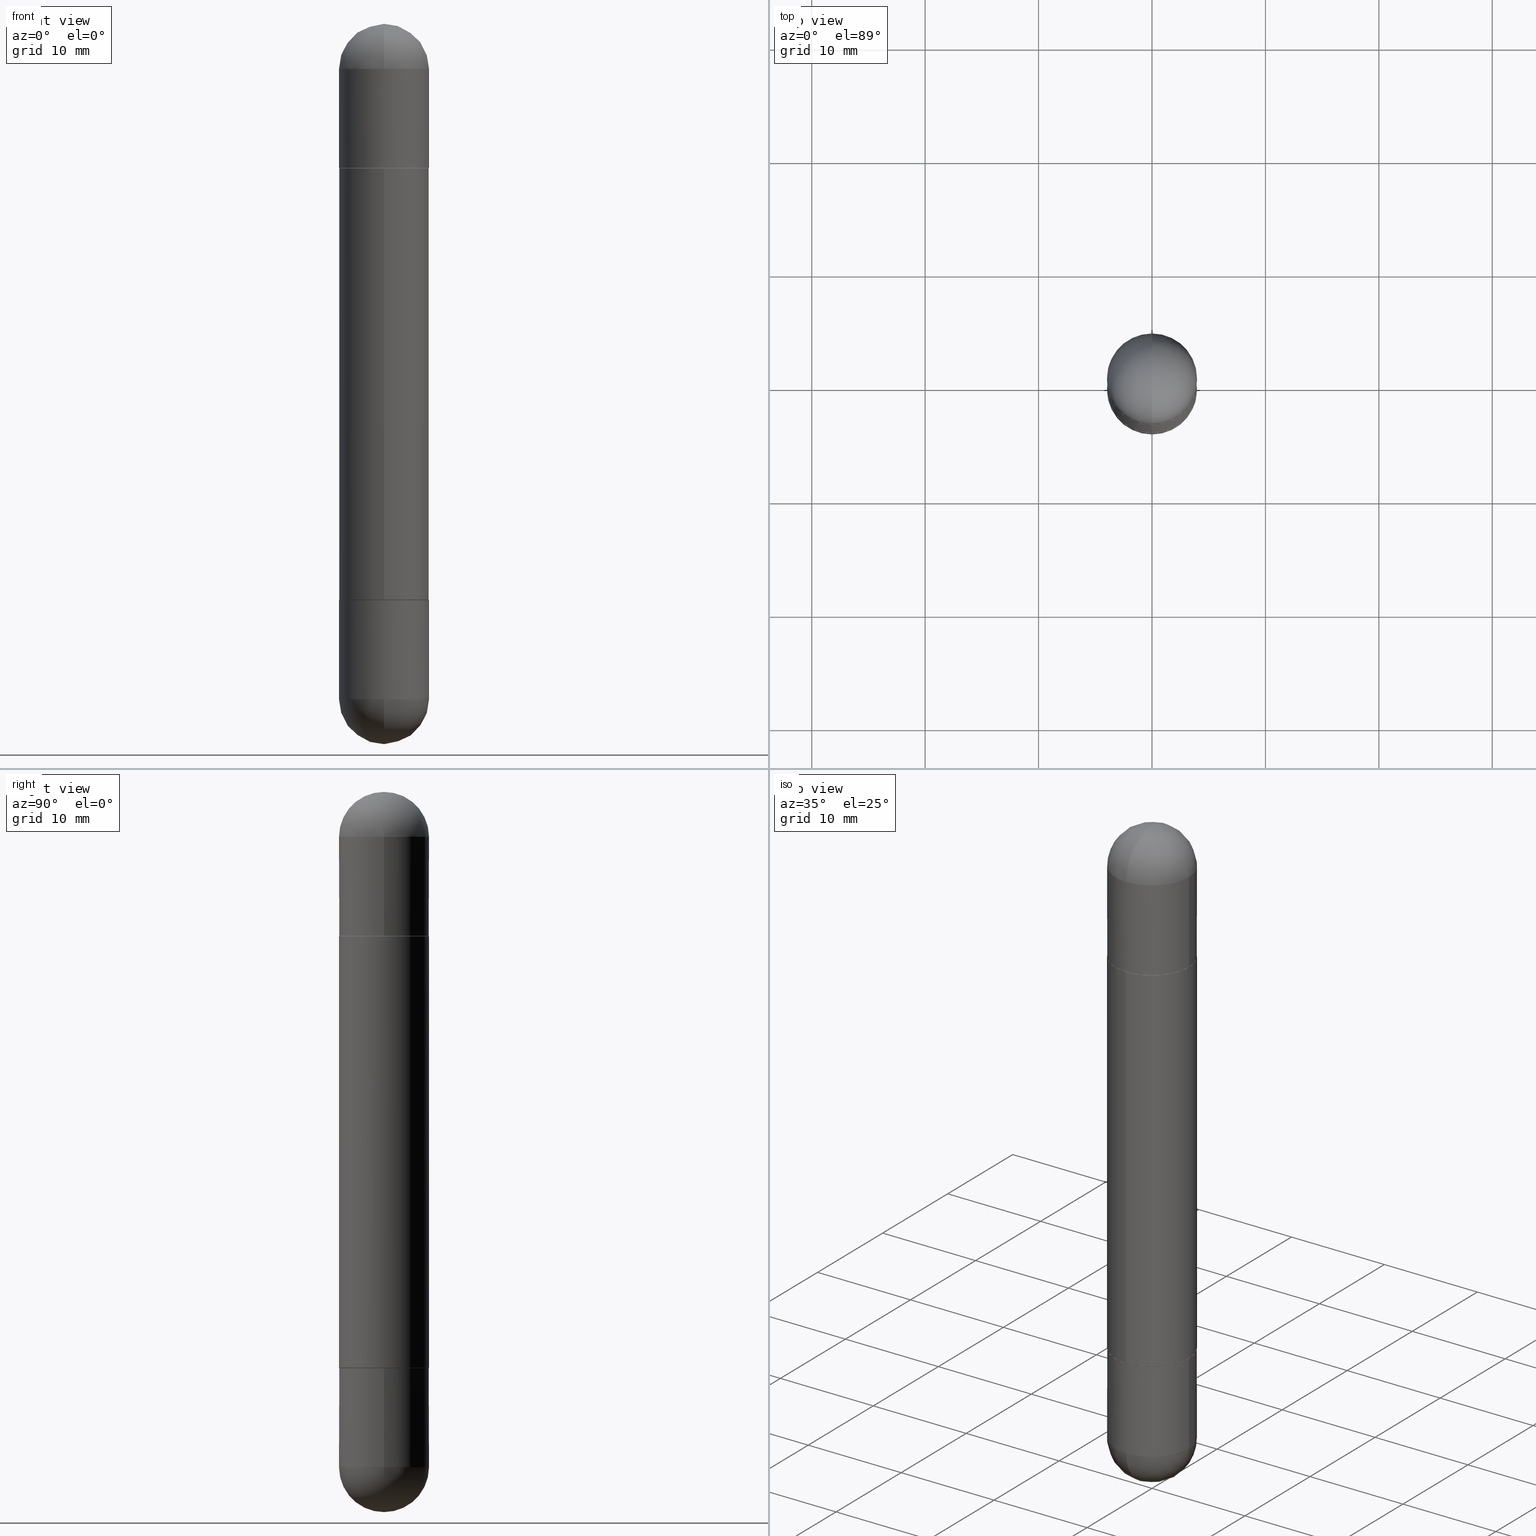
[diagram: canonical four-view strip — front | top / right | iso, engineering-drawing reading convention]
A machine part, canonical four-view strip (front | top / right | iso — engineering-drawing reading convention). The complete STEP part file that produces these views, byte-faithful:
ISO-10303-21;
HEADER;
FILE_DESCRIPTION (( 'STEP AP203' ),
    '1' );
FILE_NAME ('31353.STEP',
    '2024-03-01T12:41:30',
    ( '' ),
    ( '' ),
    'SwSTEP 2.0',
    'SolidWorks 2023',
    '' );
FILE_SCHEMA (( 'CONFIG_CONTROL_DESIGN' ));
ENDSEC;

DATA;
#1 =( NAMED_UNIT ( * ) PLANE_ANGLE_UNIT ( ) SI_UNIT ( $, .RADIAN. ) );
#2 = LINE ( 'NONE', #768, #722 ) ;
#3 = VERTEX_POINT ( 'NONE', #161 ) ;
#4 =( CONVERSION_BASED_UNIT ( 'INCH', #436 ) LENGTH_UNIT ( ) NAMED_UNIT ( #564 ) );
#5 = DIRECTION ( 'NONE',  ( 1.000000000000000000, -6.982962677686262766E-15, 0.000000000000000000 ) ) ;
#6 = ORIENTED_EDGE ( 'NONE', *, *, #600, .T. ) ;
#7 = CIRCLE ( 'NONE', #799, 0.1562500000000002498 ) ;
#8 = APPLICATION_PROTOCOL_DEFINITION ( 'international standard', 'config_control_design', 1994, #443 ) ;
#9 = APPROVAL_PERSON_ORGANIZATION ( #157, #444, #770 ) ;
#10 = CARTESIAN_POINT ( 'NONE',  ( 4.890675962207928082E-29, -6.983337375610971265E-15, -0.5000000000000006661 ) ) ;
#11 = ORIENTED_EDGE ( 'NONE', *, *, #57, .T. ) ;
#12 = AXIS2_PLACEMENT_3D ( 'NONE', #119, #549, #685 ) ;
#13 = ADVANCED_FACE ( 'NONE', ( #732 ), #115, .T. ) ;
#14 = AXIS2_PLACEMENT_3D ( 'NONE', #19, #518, #772 ) ;
#15 = CARTESIAN_POINT ( 'NONE',  ( 1.071952812151851110E-15, 0.1562499999999957812, -1.250000000000000222 ) ) ;
#16 = ORIENTED_EDGE ( 'NONE', *, *, #80, .F. ) ;
#17 = ADVANCED_FACE ( 'NONE', ( #674 ), #173, .F. ) ;
#18 = APPROVAL_ROLE ( '' ) ;
#19 = CARTESIAN_POINT ( 'NONE',  ( 4.890937612370273194E-29, -6.982962677686291165E-15, -0.5000000000000006661 ) ) ;
#20 = ORIENTED_EDGE ( 'NONE', *, *, #715, .F. ) ;
#21 = DIRECTION ( 'NONE',  ( 2.445468806185136597E-29, -3.491481338843145583E-15, 1.000000000000000000 ) ) ;
#22 = CIRCLE ( 'NONE', #479, 0.1562500000000002776 ) ;
#23 = EDGE_LOOP ( 'NONE', ( #342, #467, #401, #350 ) ) ;
#24 = EDGE_CURVE ( 'NONE', #630, #587, #306, .T. ) ;
#25 = VERTEX_POINT ( 'NONE', #294 ) ;
#26 = EDGE_CURVE ( 'NONE', #406, #280, #112, .T. ) ;
#27 = AXIS2_PLACEMENT_3D ( 'NONE', #702, #501, #573 ) ;
#28 = AXIS2_PLACEMENT_3D ( 'NONE', #632, #765, #210 ) ;
#29 = COORDINATED_UNIVERSAL_TIME_OFFSET ( 5, 0, .BEHIND. ) ;
#30 = DIRECTION ( 'NONE',  ( -2.445337981103964041E-29, 3.491668687805485632E-15, -1.000000000000000000 ) ) ;
#31 = EDGE_LOOP ( 'NONE', ( #718, #774 ) ) ;
#32 = VERTEX_POINT ( 'NONE', #668 ) ;
#33 = PERSON_AND_ORGANIZATION ( #817, #546 ) ;
#34 = CARTESIAN_POINT ( 'NONE',  ( -0.1562500000000000000, 1.110223024625156540E-15, -7.685836078523291160E-30 ) ) ;
#35 = ORIENTED_EDGE ( 'NONE', *, *, #287, .F. ) ;
#36 = ORIENTED_EDGE ( 'NONE', *, *, #516, .F. ) ;
#37 = ADVANCED_FACE ( 'NONE', ( #364 ), #671, .T. ) ;
#38 = APPLICATION_PROTOCOL_DEFINITION ( 'international standard', 'config_control_design', 1994, #733 ) ;
#39 = DIRECTION ( 'NONE',  ( 2.445468806185136597E-29, -3.491481338843145583E-15, 1.000000000000000000 ) ) ;
#40 = ORIENTED_EDGE ( 'NONE', *, *, #516, .T. ) ;
#41 = ORIENTED_EDGE ( 'NONE', *, *, #371, .T. ) ;
#42 = APPROVAL_PERSON_ORGANIZATION ( #721, #120, #18 ) ;
#43 = CC_DESIGN_PERSON_AND_ORGANIZATION_ASSIGNMENT ( #526, #530, ( #520 ) ) ;
#44 = CIRCLE ( 'NONE', #682, 0.1562500000000000000 ) ;
#45 = CARTESIAN_POINT ( 'NONE',  ( 4.890937612370273194E-29, -6.982962677686291165E-15, -2.000000000000000000 ) ) ;
#46 = ORIENTED_EDGE ( 'NONE', *, *, #453, .F. ) ;
#47 = EDGE_CURVE ( 'NONE', #141, #658, #134, .T. ) ;
#48 = CARTESIAN_POINT ( 'NONE',  ( 4.888230624226824176E-29, -6.979845706923165572E-15, -0.5010000000000007780 ) ) ;
#49 = CARTESIAN_POINT ( 'NONE',  ( -1.084104955710744053E-15, -0.1552500000000069935, -0.5000000000000009992 ) ) ;
#50 = CARTESIAN_POINT ( 'NONE',  ( 4.890675962207929203E-29, -6.983337375610972054E-15, -2.000000000000000444 ) ) ;
#51 = DIRECTION ( 'NONE',  ( -2.445337981103964041E-29, 3.491668687805485632E-15, 1.000000000000000000 ) ) ;
#52 = APPROVAL ( #711, 'UNSPECIFIED' ) ;
#53 = CARTESIAN_POINT ( 'NONE',  ( 5.400447736582527652E-29, -8.657341756053672891E-15, -2.343750000000000000 ) ) ;
#54 = CARTESIAN_POINT ( 'NONE',  ( 5.789233224183170584E-29, -9.193318162129576161E-15, -2.500000000000000000 ) ) ;
#55 = EDGE_CURVE ( 'NONE', #464, #658, #422, .T. ) ;
#56 = CIRCLE ( 'NONE', #377, 0.1552499999999999991 ) ;
#57 = EDGE_CURVE ( 'NONE', #580, #25, #273, .T. ) ;
#58 = CARTESIAN_POINT ( 'NONE',  ( -0.1562500000000000000, -6.472838008174799945E-15, -2.000000000000000000 ) ) ;
#59 = CONICAL_SURFACE ( 'NONE', #367, 0.1552499999999999991, 0.7853981633974141952 ) ;
#60 = DIRECTION ( 'NONE',  ( -6.982962677686265922E-15, -1.000000000000000000, -3.496765431890250609E-15 ) ) ;
#61 = SPHERICAL_SURFACE ( 'NONE', #454, 0.1562500000000002498 ) ;
#62 = DIRECTION ( 'NONE',  ( -6.982962677686265922E-15, -1.000000000000000000, -3.496765431890250609E-15 ) ) ;
#63 = EDGE_CURVE ( 'NONE', #198, #103, #239, .T. ) ;
#64 = DIRECTION ( 'NONE',  ( -6.982962677686265922E-15, -1.000000000000000000, 3.519288880726909138E-15 ) ) ;
#65 = DIRECTION ( 'NONE',  ( 2.445468806185136597E-29, -3.491481338843145583E-15, 1.000000000000000000 ) ) ;
#66 = FACE_OUTER_BOUND ( 'NONE', #214, .T. ) ;
#67 = CARTESIAN_POINT ( 'NONE',  ( 4.890937612370273194E-29, -6.982962677686291165E-15, -0.5000000000000006661 ) ) ;
#68 = ORIENTED_EDGE ( 'NONE', *, *, #199, .F. ) ;
#69 = CIRCLE ( 'NONE', #177, 0.1552499999999999991 ) ;
#70 = DIRECTION ( 'NONE',  ( 2.445337981103964041E-29, -3.491668687805485632E-15, 1.000000000000000000 ) ) ;
#71 = ORIENTED_EDGE ( 'NONE', *, *, #208, .T. ) ;
#72 = EDGE_CURVE ( 'NONE', #103, #412, #190, .T. ) ;
#73 = FACE_OUTER_BOUND ( 'NONE', #782, .T. ) ;
#74 = CARTESIAN_POINT ( 'NONE',  ( 5.400447736582527652E-29, -8.657341756053672891E-15, -0.1562500000000005551 ) ) ;
#75 = EDGE_LOOP ( 'NONE', ( #725, #276, #71, #397 ) ) ;
#76 = AXIS2_PLACEMENT_3D ( 'NONE', #205, #571, #77 ) ;
#77 = DIRECTION ( 'NONE',  ( 1.000000000000000000, 0.000000000000000000, 0.000000000000000000 ) ) ;
#78 = DIRECTION ( 'NONE',  ( 1.000000000000000000, -6.982962677686265922E-15, -4.883557194083112340E-29 ) ) ;
#79 = VERTEX_POINT ( 'NONE', #606 ) ;
#80 = EDGE_CURVE ( 'NONE', #714, #580, #426, .T. ) ;
#81 = AXIS2_PLACEMENT_3D ( 'NONE', #370, #374, #248 ) ;
#82 = AXIS2_PLACEMENT_3D ( 'NONE', #458, #652, #165 ) ;
#83 = CARTESIAN_POINT ( 'NONE',  ( 0.000000000000000000, 0.000000000000000000, -2.500000000000000444 ) ) ;
#84 = DIRECTION ( 'NONE',  ( -6.982962677686265922E-15, -1.000000000000000000, 0.000000000000000000 ) ) ;
#85 = VERTEX_POINT ( 'NONE', #803 ) ;
#86 = ADVANCED_FACE ( 'NONE', ( #481 ), #603, .T. ) ;
#87 = EDGE_CURVE ( 'NONE', #563, #630, #215, .T. ) ;
#88 = DIRECTION ( 'NONE',  ( 1.000000000000000000, -6.982962677686262766E-15, 0.000000000000000000 ) ) ;
#89 = ORIENTED_EDGE ( 'NONE', *, *, #80, .T. ) ;
#90 = ORIENTED_EDGE ( 'NONE', *, *, #539, .F. ) ;
#91 = CARTESIAN_POINT ( 'NONE',  ( 5.400447736582527652E-29, -8.657341756053672891E-15, -2.343750000000000000 ) ) ;
#92 = AXIS2_PLACEMENT_3D ( 'NONE', #128, #328, #249 ) ;
#93 = ORIENTED_EDGE ( 'NONE', *, *, #63, .T. ) ;
#94 = VERTEX_POINT ( 'NONE', #482 ) ;
#95 = AXIS2_PLACEMENT_3D ( 'NONE', #562, #717, #88 ) ;
#96 = PERSON_AND_ORGANIZATION ( #817, #546 ) ;
#97 = DIRECTION ( 'NONE',  ( -7.105427357601000281E-15, -1.000000000000000000, 0.000000000000000000 ) ) ;
#98 = ORIENTED_EDGE ( 'NONE', *, *, #619, .F. ) ;
#99 = EDGE_CURVE ( 'NONE', #574, #381, #743, .T. ) ;
#100 = ORIENTED_EDGE ( 'NONE', *, *, #449, .F. ) ;
#101 = PERSON_AND_ORGANIZATION_ROLE ( 'creator' ) ;
#102 = CARTESIAN_POINT ( 'NONE',  ( 5.789233224183170584E-29, -9.193318162129576161E-15, -3.073328992872296367E-16 ) ) ;
#103 = VERTEX_POINT ( 'NONE', #435 ) ;
#104 = EDGE_LOOP ( 'NONE', ( #647, #648, #315, #391 ) ) ;
#105 = CALENDAR_DATE ( 2024, 1, 3 ) ;
#106 = CARTESIAN_POINT ( 'NONE',  ( -1.091087918388432039E-15, -0.1562500000000072720, -0.5010000000000013332 ) ) ;
#107 = ORIENTED_EDGE ( 'NONE', *, *, #287, .T. ) ;
#108 = AXIS2_PLACEMENT_3D ( 'NONE', #637, #256, #378 ) ;
#109 = EDGE_CURVE ( 'NONE', #3, #627, #183, .T. ) ;
#110 = CIRCLE ( 'NONE', #561, 0.1562500000000002776 ) ;
#111 = CARTESIAN_POINT ( 'NONE',  ( -1.091087918388479962E-15, -0.1562500000000001388, -2.500000000000001332 ) ) ;
#112 = LINE ( 'NONE', #477, #355 ) ;
#113 = ADVANCED_FACE ( 'NONE', ( #804 ), #149, .T. ) ;
#114 = CARTESIAN_POINT ( 'NONE',  ( 1.071952812151802595E-15, 0.1562500000000001388, -2.500000000000000000 ) ) ;
#115 = SPHERICAL_SURFACE ( 'NONE', #636, 0.1562500000000002498 ) ;
#116 = DIRECTION ( 'NONE',  ( -6.982962677686265922E-15, -1.000000000000000000, 3.491668687805485632E-15 ) ) ;
#117 = DIRECTION ( 'NONE',  ( 2.445468806185136597E-29, -3.491481338843145583E-15, 1.000000000000000000 ) ) ;
#118 = DIRECTION ( 'NONE',  ( -4.937700262164378437E-15, -0.7071067811865208164, -0.7071067811865739960 ) ) ;
#119 = CARTESIAN_POINT ( 'NONE',  ( 5.731567514496413899E-29, -8.183159387913622595E-15, -0.1562500000000005551 ) ) ;
#120 = APPROVAL ( #583, 'UNSPECIFIED' ) ;
#121 = FACE_OUTER_BOUND ( 'NONE', #533, .T. ) ;
#122 = AXIS2_PLACEMENT_3D ( 'NONE', #10, #267, #140 ) ;
#123 = CIRCLE ( 'NONE', #228, 0.1562500000000000000 ) ;
#124 = DIRECTION ( 'NONE',  ( -4.937700262164378437E-15, -0.7071067811865208164, -0.7071067811865739960 ) ) ;
#125 = DIRECTION ( 'NONE',  ( -6.982962677686265922E-15, -1.000000000000000000, -3.519288880726909138E-15 ) ) ;
#126 = DIRECTION ( 'NONE',  ( -6.982962677686265922E-15, -1.000000000000000000, -3.519288880726909138E-15 ) ) ;
#127 = DIRECTION ( 'NONE',  ( 1.000000000000000000, -6.860497997771530774E-15, -4.840798879624142912E-29 ) ) ;
#128 = CARTESIAN_POINT ( 'NONE',  ( 1.091087918388527886E-15, 0.1562499999999930334, -0.5000000000000001110 ) ) ;
#129 = CARTESIAN_POINT ( 'NONE',  ( -0.1562500000000000000, -6.511108220648155468E-15, -0.5000000000000006661 ) ) ;
#130 = ORIENTED_EDGE ( 'NONE', *, *, #55, .T. ) ;
#131 = CIRCLE ( 'NONE', #297, 0.1562500000000002776 ) ;
#132 = CARTESIAN_POINT ( 'NONE',  ( 0.000000000000000000, 0.000000000000000000, -2.500000000000000444 ) ) ;
#133 = MANIFOLD_SOLID_BREP ( 'Body-Move/Copy2[1]', #323 ) ;
#134 = CIRCLE ( 'NONE', #695, 0.1562500000000002776 ) ;
#135 = DIRECTION ( 'NONE',  ( -6.982962677686265922E-15, -1.000000000000000000, -3.496765431890250609E-15 ) ) ;
#136 = EDGE_LOOP ( 'NONE', ( #463, #567, #321, #704 ) ) ;
#137 = AXIS2_PLACEMENT_3D ( 'NONE', #352, #408, #535 ) ;
#138 = CYLINDRICAL_SURFACE ( 'NONE', #773, 0.1562500000000001388 ) ;
#139 = ADVANCED_FACE ( 'NONE', ( #194 ), #749, .F. ) ;
#140 = DIRECTION ( 'NONE',  ( -6.982962677686265922E-15, -1.000000000000000000, -3.491668687805485632E-15 ) ) ;
#141 = VERTEX_POINT ( 'NONE', #180 ) ;
#142 = FACE_OUTER_BOUND ( 'NONE', #292, .T. ) ;
#143 = DIRECTION ( 'NONE',  ( -2.445337981103964041E-29, 3.491668687805485632E-15, -1.000000000000000000 ) ) ;
#144 = ORIENTED_EDGE ( 'NONE', *, *, #686, .F. ) ;
#145 = VECTOR ( 'NONE', #485, 39.37007874015748143 ) ;
#146 = EDGE_CURVE ( 'NONE', #726, #262, #522, .T. ) ;
#147 = LINE ( 'NONE', #390, #614 ) ;
#148 = EDGE_LOOP ( 'NONE', ( #474, #166, #588, #570, #713 ) ) ;
#149 = CONICAL_SURFACE ( 'NONE', #251, 0.1552499999999999991, 0.7853981633974141952 ) ;
#150 = EDGE_CURVE ( 'NONE', #406, #590, #227, .T. ) ;
#151 = DIRECTION ( 'NONE',  ( 1.000000000000000000, -6.982962677686262766E-15, 0.000000000000000000 ) ) ;
#152 = ORIENTED_EDGE ( 'NONE', *, *, #398, .F. ) ;
#153 = ORIENTED_EDGE ( 'NONE', *, *, #146, .T. ) ;
#154 = DIRECTION ( 'NONE',  ( -1.000000000000000000, 0.000000000000000000, 0.000000000000000000 ) ) ;
#155 = ORIENTED_EDGE ( 'NONE', *, *, #26, .F. ) ;
#156 = ORIENTED_EDGE ( 'NONE', *, *, #373, .T. ) ;
#157 = PERSON_AND_ORGANIZATION ( #817, #546 ) ;
#158 = AXIS2_PLACEMENT_3D ( 'NONE', #83, #576, #503 ) ;
#159 = CARTESIAN_POINT ( 'NONE',  ( 5.731567514496413899E-29, -8.183159387913622595E-15, -0.1562500000000005551 ) ) ;
#160 = CIRCLE ( 'NONE', #506, 0.1562500000000000000 ) ;
#161 = CARTESIAN_POINT ( 'NONE',  ( 0.1562500000000000000, -8.674148951188436448E-15, -0.1562500000000005551 ) ) ;
#162 = AXIS2_PLACEMENT_3D ( 'NONE', #514, #317, #84 ) ;
#163 = CIRCLE ( 'NONE', #343, 0.1552499999999999991 ) ;
#164 = CC_DESIGN_PERSON_AND_ORGANIZATION_ASSIGNMENT ( #33, #645, ( #734 ) ) ;
#165 = DIRECTION ( 'NONE',  ( -6.982962677686265922E-15, -1.000000000000000000, 3.519288880726909138E-15 ) ) ;
#166 = ORIENTED_EDGE ( 'NONE', *, *, #747, .T. ) ;
#167 = ORIENTED_EDGE ( 'NONE', *, *, #676, .F. ) ;
#168 = PERSON_AND_ORGANIZATION_ROLE ( 'design_owner' ) ;
#169 = DIRECTION ( 'NONE',  ( -2.445468806185136597E-29, 3.491481338843145583E-15, -1.000000000000000000 ) ) ;
#170 = EDGE_CURVE ( 'NONE', #630, #563, #818, .T. ) ;
#171 = EDGE_LOOP ( 'NONE', ( #532, #386, #528, #16 ) ) ;
#172 = FACE_OUTER_BOUND ( 'NONE', #643, .T. ) ;
#173 = PLANE ( 'NONE',  #801 ) ;
#174 = APPROVAL_PERSON_ORGANIZATION ( #96, #52, #216 ) ;
#175 = ADVANCED_FACE ( 'NONE', ( #66 ), #557, .T. ) ;
#176 = ADVANCED_FACE ( 'NONE', ( #432 ), #544, .T. ) ;
#177 = AXIS2_PLACEMENT_3D ( 'NONE', #626, #261, #324 ) ;
#178 = CARTESIAN_POINT ( 'NONE',  ( 4.890937612370273194E-29, -6.982962677686291165E-15, -0.5000000000000006661 ) ) ;
#179 = DIRECTION ( 'NONE',  ( 6.982962677686265922E-15, 1.000000000000000000, 3.496765431890251398E-15 ) ) ;
#180 = CARTESIAN_POINT ( 'NONE',  ( 1.071952812151833755E-15, 0.1562499999999933109, -1.999000000000000554 ) ) ;
#181 = CARTESIAN_POINT ( 'NONE',  ( 5.731567514496413899E-29, -8.183159387913622595E-15, -0.1562500000000005551 ) ) ;
#182 = DIRECTION ( 'NONE',  ( -4.937700262164378437E-15, -0.7071067811865208164, 0.7071067811865739960 ) ) ;
#183 = LINE ( 'NONE', #423, #428 ) ;
#184 = DESIGN_CONTEXT ( 'detailed design', #733, 'design' ) ;
#185 = CARTESIAN_POINT ( 'NONE',  ( -1.071952812151746981E-15, -0.1562500000000085487, -0.1562500000000011102 ) ) ;
#186 = DIRECTION ( 'NONE',  ( 1.000000000000000000, -6.982962677686262766E-15, 0.000000000000000000 ) ) ;
#187 = DIRECTION ( 'NONE',  ( -2.445468806185136597E-29, 3.491481338843145583E-15, 1.000000000000000000 ) ) ;
#188 = LOCAL_TIME ( 7, 41, 30.00000000000000000, #282 ) ;
#189 = DIRECTION ( 'NONE',  ( 1.000000000000000000, -6.860497997771530774E-15, -4.840798879624142912E-29 ) ) ;
#190 = CIRCLE ( 'NONE', #598, 0.1562500000000000000 ) ;
#191 = CC_DESIGN_PERSON_AND_ORGANIZATION_ASSIGNMENT ( #346, #517, ( #520 ) ) ;
#192 = DIRECTION ( 'NONE',  ( 1.000000000000000000, -6.982962677686269077E-15, 0.000000000000000000 ) ) ;
#193 = PLANE ( 'NONE',  #363 ) ;
#194 = FACE_OUTER_BOUND ( 'NONE', #202, .T. ) ;
#195 = ADVANCED_FACE ( 'NONE', ( #494 ), #740, .F. ) ;
#196 = DIRECTION ( 'NONE',  ( -2.445337981103964041E-29, 3.491668687805485632E-15, -1.000000000000000000 ) ) ;
#197 = FACE_OUTER_BOUND ( 'NONE', #786, .T. ) ;
#198 = VERTEX_POINT ( 'NONE', #54 ) ;
#199 = EDGE_CURVE ( 'NONE', #529, #32, #379, .T. ) ;
#200 = AXIS2_PLACEMENT_3D ( 'NONE', #798, #127, #604 ) ;
#201 = CYLINDRICAL_SURFACE ( 'NONE', #638, 0.1562500000000001388 ) ;
#202 = EDGE_LOOP ( 'NONE', ( #778, #35 ) ) ;
#203 = AXIS2_PLACEMENT_3D ( 'NONE', #91, #338, #403 ) ;
#204 = MANIFOLD_SOLID_BREP ( 'Mirror4[3]', #812 ) ;
#205 = CARTESIAN_POINT ( 'NONE',  ( 0.000000000000000000, 0.000000000000000000, 0.000000000000000000 ) ) ;
#206 = FACE_OUTER_BOUND ( 'NONE', #634, .T. ) ;
#207 = ORIENTED_EDGE ( 'NONE', *, *, #99, .F. ) ;
#208 = EDGE_CURVE ( 'NONE', #32, #406, #405, .T. ) ;
#209 = DIRECTION ( 'NONE',  ( -6.982962677686265922E-15, -1.000000000000000000, -3.519288880726909138E-15 ) ) ;
#210 = DIRECTION ( 'NONE',  ( 1.000000000000000000, -6.982962677686269077E-15, 0.000000000000000000 ) ) ;
#211 = ORIENTED_EDGE ( 'NONE', *, *, #47, .T. ) ;
#212 = CALENDAR_DATE ( 2024, 1, 3 ) ;
#213 = CARTESIAN_POINT ( 'NONE',  ( 1.106670310946405735E-15, 0.1552499999999930047, -2.000000000000000888 ) ) ;
#214 = EDGE_LOOP ( 'NONE', ( #333, #404, #219, #20, #525 ) ) ;
#215 = CIRCLE ( 'NONE', #341, 0.1552499999999999991 ) ;
#216 = APPROVAL_ROLE ( '' ) ;
#217 = CARTESIAN_POINT ( 'NONE',  ( 1.065092314154079104E-15, 0.1552499999999930047, -0.4999999999999998335 ) ) ;
#218 = ORIENTED_EDGE ( 'NONE', *, *, #26, .T. ) ;
#219 = ORIENTED_EDGE ( 'NONE', *, *, #491, .F. ) ;
#220 = DATE_AND_TIME ( #790, #621 ) ;
#221 = CARTESIAN_POINT ( 'NONE',  ( 4.890675962207929203E-29, -6.983337375610972054E-15, -2.000000000000000444 ) ) ;
#222 = EDGE_LOOP ( 'NONE', ( #354, #100 ) ) ;
#223 = EDGE_LOOP ( 'NONE', ( #698, #40, #694, #795 ) ) ;
#224 = CARTESIAN_POINT ( 'NONE',  ( 5.731567514496413899E-29, -8.183159387913622595E-15, -0.1562500000000005551 ) ) ;
#225 = ORIENTED_EDGE ( 'NONE', *, *, #87, .F. ) ;
#226 = ORIENTED_EDGE ( 'NONE', *, *, #99, .T. ) ;
#227 = CIRCLE ( 'NONE', #389, 0.1562500000000000000 ) ;
#228 = AXIS2_PLACEMENT_3D ( 'NONE', #67, #455, #314 ) ;
#229 = ADVANCED_FACE ( 'NONE', ( #618 ), #61, .T. ) ;
#230 = FACE_OUTER_BOUND ( 'NONE', #258, .T. ) ;
#231 = ORIENTED_EDGE ( 'NONE', *, *, #625, .F. ) ;
#232 = ADVANCED_FACE ( 'NONE', ( #754 ), #688, .T. ) ;
#233 = DIRECTION ( 'NONE',  ( -1.000000000000000000, 7.105427357601001070E-15, -4.926315508542082329E-29 ) ) ;
#234 = ORIENTED_EDGE ( 'NONE', *, *, #612, .T. ) ;
#235 = DIRECTION ( 'NONE',  ( -1.000000000000000000, 6.982962677686265922E-15, -4.876176775795935793E-29 ) ) ;
#236 = DIRECTION ( 'NONE',  ( -2.445468806185136597E-29, 3.491481338843145583E-15, 1.000000000000000000 ) ) ;
#237 = CIRCLE ( 'NONE', #596, 0.1562500000000002498 ) ;
#238 = CARTESIAN_POINT ( 'NONE',  ( 0.000000000000000000, 0.000000000000000000, -2.500000000000000444 ) ) ;
#239 = CIRCLE ( 'NONE', #439, 0.1562500000000002498 ) ;
#240 = VECTOR ( 'NONE', #724, 39.37007874015748854 ) ;
#241 = LINE ( 'NONE', #114, #145 ) ;
#242 = DIRECTION ( 'NONE',  ( -2.445337981103963761E-29, 3.491668687805485632E-15, -1.000000000000000000 ) ) ;
#243 = CARTESIAN_POINT ( 'NONE',  ( 5.731567514496413899E-29, -8.183159387913622595E-15, -0.1562500000000005551 ) ) ;
#244 = DIRECTION ( 'NONE',  ( -6.982962677686265922E-15, -1.000000000000000000, 3.496765431890250609E-15 ) ) ;
#245 = CARTESIAN_POINT ( 'NONE',  ( 0.000000000000000000, 0.000000000000000000, -2.500000000000000444 ) ) ;
#246 = CARTESIAN_POINT ( 'NONE',  ( 1.091087918388527886E-15, 0.1562499999999930334, -0.5000000000000001110 ) ) ;
#247 = CARTESIAN_POINT ( 'NONE',  ( 0.000000000000000000, 0.000000000000000000, 0.000000000000000000 ) ) ;
#248 = DIRECTION ( 'NONE',  ( 1.000000000000000000, -6.982962677686266711E-15, 4.876176775795936353E-29 ) ) ;
#249 = DIRECTION ( 'NONE',  ( -1.000000000000000000, 6.982962677686265922E-15, 4.876176775795935793E-29 ) ) ;
#250 = EDGE_CURVE ( 'NONE', #272, #85, #508, .T. ) ;
#251 = AXIS2_PLACEMENT_3D ( 'NONE', #50, #304, #64 ) ;
#252 = CARTESIAN_POINT ( 'NONE',  ( 4.890937612370273194E-29, -6.982962677686291165E-15, -2.000000000000000000 ) ) ;
#253 = DIRECTION ( 'NONE',  ( 1.000000000000000000, -6.982962677686266711E-15, 0.000000000000000000 ) ) ;
#254 = ORIENTED_EDGE ( 'NONE', *, *, #277, .F. ) ;
#255 = EDGE_CURVE ( 'NONE', #285, #757, #260, .T. ) ;
#256 = DIRECTION ( 'NONE',  ( -2.445468806185136597E-29, 3.491481338843145583E-15, -1.000000000000000000 ) ) ;
#257 = DIRECTION ( 'NONE',  ( -6.982962677686265922E-15, -1.000000000000000000, -3.496765431890253764E-15 ) ) ;
#258 = EDGE_LOOP ( 'NONE', ( #318, #90, #400, #793, #156 ) ) ;
#259 = AXIS2_PLACEMENT_3D ( 'NONE', #666, #51, #480 ) ;
#260 = CIRCLE ( 'NONE', #416, 0.1562500000000001388 ) ;
#261 = DIRECTION ( 'NONE',  ( 2.445337981103964041E-29, -3.491668687805485632E-15, 1.000000000000000000 ) ) ;
#262 = VERTEX_POINT ( 'NONE', #380 ) ;
#263 = CONICAL_SURFACE ( 'NONE', #551, 0.1552499999999999991, 0.7853981633974141952 ) ;
#264 = DIRECTION ( 'NONE',  ( -6.982962677686265922E-15, -1.000000000000000000, -3.519288880726909138E-15 ) ) ;
#265 = ORIENTED_EDGE ( 'NONE', *, *, #555, .F. ) ;
#266 = DATE_TIME_ROLE ( 'creation_date' ) ;
#267 = DIRECTION ( 'NONE',  ( -2.445337981103963761E-29, 3.491668687805485632E-15, -1.000000000000000000 ) ) ;
#268 = EDGE_LOOP ( 'NONE', ( #689, #41, #785, #581, #152 ) ) ;
#269 = CC_DESIGN_APPROVAL ( #52, ( #520 ) ) ;
#270 = DIRECTION ( 'NONE',  ( -6.982962677686265922E-15, -1.000000000000000000, -3.519288880726909138E-15 ) ) ;
#271 = ORIENTED_EDGE ( 'NONE', *, *, #476, .F. ) ;
#272 = VERTEX_POINT ( 'NONE', #566 ) ;
#273 = CIRCLE ( 'NONE', #468, 0.1562500000000002776 ) ;
#274 = APPROVAL_DATE_TIME ( #220, #52 ) ;
#275 = CARTESIAN_POINT ( 'NONE',  ( 5.400447736582527652E-29, -8.657341756053672891E-15, -2.343750000000000000 ) ) ;
#276 = ORIENTED_EDGE ( 'NONE', *, *, #199, .T. ) ;
#277 = EDGE_CURVE ( 'NONE', #384, #141, #2, .T. ) ;
#278 = COORDINATED_UNIVERSAL_TIME_OFFSET ( 5, 0, .BEHIND. ) ;
#279 = DIRECTION ( 'NONE',  ( -2.445468806185136877E-29, 3.491481338843145188E-15, 1.000000000000000000 ) ) ;
#280 = VERTEX_POINT ( 'NONE', #385 ) ;
#281 = ORIENTED_EDGE ( 'NONE', *, *, #255, .T. ) ;
#282 = COORDINATED_UNIVERSAL_TIME_OFFSET ( 5, 0, .BEHIND. ) ;
#283 = LOCAL_TIME ( 7, 41, 30.00000000000000000, #776 ) ;
#284 = CARTESIAN_POINT ( 'NONE',  ( 1.068522563152965797E-15, 0.1552499999999930047, -0.4999999999999998335 ) ) ;
#285 = VERTEX_POINT ( 'NONE', #15 ) ;
#286 = ORIENTED_EDGE ( 'NONE', *, *, #453, .T. ) ;
#287 = EDGE_CURVE ( 'NONE', #381, #280, #366, .T. ) ;
#288 = VECTOR ( 'NONE', #737, 39.37007874015748143 ) ;
#289 = AXIS2_PLACEMENT_3D ( 'NONE', #656, #462, #154 ) ;
#290 = CARTESIAN_POINT ( 'NONE',  ( 0.1562500000000000000, -8.674148951188436448E-15, -0.1562500000000005551 ) ) ;
#291 = EDGE_CURVE ( 'NONE', #3, #85, #44, .T. ) ;
#292 = EDGE_LOOP ( 'NONE', ( #349, #6, #211, #502 ) ) ;
#293 = DIRECTION ( 'NONE',  ( 2.445337981103964041E-29, -3.491668687805485632E-15, 1.000000000000000000 ) ) ;
#294 = CARTESIAN_POINT ( 'NONE',  ( 1.071952812151852491E-15, 0.1562499999999932832, -0.5010000000000002229 ) ) ;
#295 = DIRECTION ( 'NONE',  ( -6.982962677686265922E-15, -1.000000000000000000, -3.496765431890250609E-15 ) ) ;
#296 = CARTESIAN_POINT ( 'NONE',  ( -1.084104955710744053E-15, -0.1552500000000069935, -0.5000000000000009992 ) ) ;
#297 = AXIS2_PLACEMENT_3D ( 'NONE', #417, #741, #244 ) ;
#298 = DIRECTION ( 'NONE',  ( -2.445468806185136877E-29, 3.491481338843145188E-15, -1.000000000000000000 ) ) ;
#299 = ADVANCED_FACE ( 'NONE', ( #197 ), #437, .F. ) ;
#300 = CLOSED_SHELL ( 'NONE', ( #331, #752, #780, #17, #433, #37 ) ) ;
#301 = CIRCLE ( 'NONE', #14, 0.1562500000000000000 ) ;
#302 = FACE_OUTER_BOUND ( 'NONE', #148, .T. ) ;
#303 = DIRECTION ( 'NONE',  ( 1.000000000000000000, -6.982962677686265922E-15, 4.883557194083112340E-29 ) ) ;
#304 = DIRECTION ( 'NONE',  ( -2.445337981103964041E-29, 3.491668687805485632E-15, 1.000000000000000000 ) ) ;
#305 = DIRECTION ( 'NONE',  ( 1.000000000000000000, -6.982962677686262766E-15, 0.000000000000000000 ) ) ;
#306 = LINE ( 'NONE', #49, #313 ) ;
#307 = DIRECTION ( 'NONE',  ( 1.000000000000000000, -6.982962677686265922E-15, -4.883557194083112340E-29 ) ) ;
#308 = EDGE_CURVE ( 'NONE', #25, #580, #110, .T. ) ;
#309 = DIRECTION ( 'NONE',  ( -2.445468806185136597E-29, 3.491481338843145583E-15, 1.000000000000000000 ) ) ;
#310 = CARTESIAN_POINT ( 'NONE',  ( 5.400447736582527652E-29, -8.657341756053672891E-15, -2.343750000000000000 ) ) ;
#311 =( GEOMETRIC_REPRESENTATION_CONTEXT ( 3 ) GLOBAL_UNCERTAINTY_ASSIGNED_CONTEXT ( ( #478 ) ) GLOBAL_UNIT_ASSIGNED_CONTEXT ( ( #4, #1, #624 ) ) REPRESENTATION_CONTEXT ( 'NONE', 'WORKASPACE' ) );
#312 = PRODUCT_DEFINITION ( 'UNKNOWN', '', #520, #184 ) ;
#313 = VECTOR ( 'NONE', #118, 39.37007874015748854 ) ;
#314 = DIRECTION ( 'NONE',  ( 1.000000000000000000, -6.982962677686269077E-15, 0.000000000000000000 ) ) ;
#315 = ORIENTED_EDGE ( 'NONE', *, *, #24, .T. ) ;
#316 = CARTESIAN_POINT ( 'NONE',  ( 0.000000000000000000, 0.000000000000000000, -1.250000000000000222 ) ) ;
#317 = DIRECTION ( 'NONE',  ( -1.000000000000000000, 6.982962677686265922E-15, 4.883557194083112340E-29 ) ) ;
#318 = ORIENTED_EDGE ( 'NONE', *, *, #371, .F. ) ;
#319 = CYLINDRICAL_SURFACE ( 'NONE', #108, 0.1562500000000000000 ) ;
#320 = FACE_OUTER_BOUND ( 'NONE', #662, .T. ) ;
#321 = ORIENTED_EDGE ( 'NONE', *, *, #665, .F. ) ;
#322 = CIRCLE ( 'NONE', #787, 0.1562500000000000000 ) ;
#323 = CLOSED_SHELL ( 'NONE', ( #175, #507, #229, #661, #595 ) ) ;
#324 = DIRECTION ( 'NONE',  ( -6.982962677686265922E-15, -1.000000000000000000, -3.519288880726909138E-15 ) ) ;
#325 = ORIENTED_EDGE ( 'NONE', *, *, #619, .T. ) ;
#326 = VECTOR ( 'NONE', #527, 39.37007874015748143 ) ;
#327 = EDGE_CURVE ( 'NONE', #578, #714, #69, .T. ) ;
#328 = DIRECTION ( 'NONE',  ( 2.438088387897960049E-29, -3.491481338843145188E-15, 1.000000000000000000 ) ) ;
#329 = DIRECTION ( 'NONE',  ( 2.445468806185136597E-29, -3.491481338843145583E-15, 1.000000000000000000 ) ) ;
#330 = ORIENTED_EDGE ( 'NONE', *, *, #250, .F. ) ;
#331 = ADVANCED_FACE ( 'NONE', ( #206 ), #639, .T. ) ;
#332 = FACE_OUTER_BOUND ( 'NONE', #104, .T. ) ;
#333 = ORIENTED_EDGE ( 'NONE', *, *, #72, .T. ) ;
#334 = EDGE_LOOP ( 'NONE', ( #265, #766, #89, #11 ) ) ;
#335 = AXIS2_PLACEMENT_3D ( 'NONE', #513, #499, #448 ) ;
#336 = DATE_AND_TIME ( #461, #283 ) ;
#337 = PRODUCT_RELATED_PRODUCT_CATEGORY ( 'detail', '', ( #809 ) ) ;
#338 = DIRECTION ( 'NONE',  ( -1.000000000000000000, 6.982962677686265922E-15, -4.883557194083112340E-29 ) ) ;
#339 = ORIENTED_EDGE ( 'NONE', *, *, #727, .T. ) ;
#340 = ADVANCED_FACE ( 'NONE', ( #320 ), #622, .T. ) ;
#341 = AXIS2_PLACEMENT_3D ( 'NONE', #427, #361, #808 ) ;
#342 = ORIENTED_EDGE ( 'NONE', *, *, #600, .F. ) ;
#343 = AXIS2_PLACEMENT_3D ( 'NONE', #221, #523, #777 ) ;
#344 = LINE ( 'NONE', #34, #392 ) ;
#345 = ORIENTED_EDGE ( 'NONE', *, *, #568, .F. ) ;
#346 = PERSON_AND_ORGANIZATION ( #817, #546 ) ;
#347 = LINE ( 'NONE', #466, #240 ) ;
#348 = ADVANCED_FACE ( 'NONE', ( #450 ), #201, .T. ) ;
#349 = ORIENTED_EDGE ( 'NONE', *, *, #308, .F. ) ;
#350 = ORIENTED_EDGE ( 'NONE', *, *, #665, .T. ) ;
#351 = CALENDAR_DATE ( 2024, 1, 3 ) ;
#352 = CARTESIAN_POINT ( 'NONE',  ( 5.731567514496413899E-29, -8.183159387913622595E-15, -2.343750000000000000 ) ) ;
#353 = CC_DESIGN_APPROVAL ( #444, ( #734 ) ) ;
#354 = ORIENTED_EDGE ( 'NONE', *, *, #500, .F. ) ;
#355 = VECTOR ( 'NONE', #680, 39.37007874015748143 ) ;
#356 = DIRECTION ( 'NONE',  ( -2.445468806185136597E-29, 3.491481338843145583E-15, 1.000000000000000000 ) ) ;
#357 = DIRECTION ( 'NONE',  ( -6.982962677686265922E-15, -1.000000000000000000, -3.496765431890253764E-15 ) ) ;
#358 = CARTESIAN_POINT ( 'NONE',  ( -0.1562500000000000000, 1.071952812151801807E-15, -2.500000000000000444 ) ) ;
#359 = DIRECTION ( 'NONE',  ( 2.445337981103964041E-29, -3.491668687805485632E-15, 1.000000000000000000 ) ) ;
#360 = DIRECTION ( 'NONE',  ( -2.445337981103964041E-29, 3.491668687805485632E-15, 1.000000000000000000 ) ) ;
#361 = DIRECTION ( 'NONE',  ( 2.445337981103964041E-29, -3.491668687805485632E-15, 1.000000000000000000 ) ) ;
#362 = CARTESIAN_POINT ( 'NONE',  ( 0.1562500000000000000, -1.091087918388479174E-15, 7.619026212181150377E-30 ) ) ;
#363 = AXIS2_PLACEMENT_3D ( 'NONE', #316, #767, #497 ) ;
#364 = FACE_OUTER_BOUND ( 'NONE', #456, .T. ) ;
#365 = ADVANCED_FACE ( 'NONE', ( #504 ), #59, .T. ) ;
#366 = CIRCLE ( 'NONE', #28, 0.1562500000000000000 ) ;
#367 = AXIS2_PLACEMENT_3D ( 'NONE', #699, #143, #264 ) ;
#368 = CARTESIAN_POINT ( 'NONE',  ( -1.091087918388432039E-15, -0.1562500000000072442, -1.998999999999999444 ) ) ;
#369 = DIRECTION ( 'NONE',  ( -6.982962677686265922E-15, -1.000000000000000000, 3.496765431890250609E-15 ) ) ;
#370 = CARTESIAN_POINT ( 'NONE',  ( 0.000000000000000000, 0.000000000000000000, 0.000000000000000000 ) ) ;
#371 = EDGE_CURVE ( 'NONE', #442, #524, #147, .T. ) ;
#372 = CARTESIAN_POINT ( 'NONE',  ( 1.071952812151852491E-15, 0.1562499999999932832, -0.5010000000000002229 ) ) ;
#373 = EDGE_CURVE ( 'NONE', #627, #524, #301, .T. ) ;
#374 = DIRECTION ( 'NONE',  ( -2.445468806185136597E-29, 3.491481338843145583E-15, 1.000000000000000000 ) ) ;
#375 =( LENGTH_UNIT ( ) NAMED_UNIT ( * ) SI_UNIT ( $, .METRE. ) );
#376 = ORIENTED_EDGE ( 'NONE', *, *, #420, .F. ) ;
#377 = AXIS2_PLACEMENT_3D ( 'NONE', #815, #738, #126 ) ;
#378 = DIRECTION ( 'NONE',  ( 1.000000000000000000, -6.982962677686266711E-15, 0.000000000000000000 ) ) ;
#379 = CIRCLE ( 'NONE', #200, 0.1562500000000002498 ) ;
#380 = CARTESIAN_POINT ( 'NONE',  ( 0.1562500000000000000, -8.074050596074770339E-15, -2.000000000000000000 ) ) ;
#381 = VERTEX_POINT ( 'NONE', #129 ) ;
#382 = CARTESIAN_POINT ( 'NONE',  ( -1.091087918388440322E-15, -0.1562500000000045242, -1.250000000000000222 ) ) ;
#383 = DIRECTION ( 'NONE',  ( -2.445468806185136597E-29, 3.491481338843145583E-15, -1.000000000000000000 ) ) ;
#384 = VERTEX_POINT ( 'NONE', #213 ) ;
#385 = CARTESIAN_POINT ( 'NONE',  ( 0.1562500000000000000, -8.074050596074770339E-15, -0.5000000000000006661 ) ) ;
#386 = ORIENTED_EDGE ( 'NONE', *, *, #555, .T. ) ;
#387 = CIRCLE ( 'NONE', #582, 0.1562500000000000000 ) ;
#388 = FACE_OUTER_BOUND ( 'NONE', #460, .T. ) ;
#389 = AXIS2_PLACEMENT_3D ( 'NONE', #243, #419, #681 ) ;
#390 = CARTESIAN_POINT ( 'NONE',  ( -0.1562500000000000000, 1.071952812151801807E-15, -2.500000000000000444 ) ) ;
#391 = ORIENTED_EDGE ( 'NONE', *, *, #625, .T. ) ;
#392 = VECTOR ( 'NONE', #279, 39.37007874015748143 ) ;
#393 = EDGE_CURVE ( 'NONE', #524, #627, #123, .T. ) ;
#394 = DATE_TIME_ROLE ( 'classification_date' ) ;
#395 = CARTESIAN_POINT ( 'NONE',  ( -0.1562500000000000000, -6.511108220648156257E-15, -0.1562500000000005551 ) ) ;
#396 = ORIENTED_EDGE ( 'NONE', *, *, #727, .F. ) ;
#397 = ORIENTED_EDGE ( 'NONE', *, *, #150, .T. ) ;
#398 = EDGE_CURVE ( 'NONE', #642, #3, #470, .T. ) ;
#399 = DIRECTION ( 'NONE',  ( 4.851104656540797036E-15, 0.7071067811865257013, -0.7071067811865691111 ) ) ;
#400 = ORIENTED_EDGE ( 'NONE', *, *, #291, .F. ) ;
#401 = ORIENTED_EDGE ( 'NONE', *, *, #654, .T. ) ;
#402 = VECTOR ( 'NONE', #746, 39.37007874015748143 ) ;
#403 = DIRECTION ( 'NONE',  ( 6.982962677686265922E-15, 1.000000000000000000, -3.496765431890251398E-15 ) ) ;
#404 = ORIENTED_EDGE ( 'NONE', *, *, #545, .T. ) ;
#405 = CIRCLE ( 'NONE', #12, 0.1562500000000000000 ) ;
#406 = VERTEX_POINT ( 'NONE', #290 ) ;
#407 = CIRCLE ( 'NONE', #538, 0.1562500000000002498 ) ;
#408 = DIRECTION ( 'NONE',  ( -2.445468806185136597E-29, 3.491481338843145583E-15, 1.000000000000000000 ) ) ;
#409 = ORIENTED_EDGE ( 'NONE', *, *, #255, .F. ) ;
#410 = EDGE_LOOP ( 'NONE', ( #396, #505, #653, #591 ) ) ;
#411 = DIRECTION ( 'NONE',  ( 1.000000000000000000, -6.982962677686266711E-15, 0.000000000000000000 ) ) ;
#412 = VERTEX_POINT ( 'NONE', #579 ) ;
#413 = CIRCLE ( 'NONE', #649, 0.1562500000000002776 ) ;
#414 = DIRECTION ( 'NONE',  ( -2.445337981103964041E-29, 3.491668687805485632E-15, -1.000000000000000000 ) ) ;
#415 = DIRECTION ( 'NONE',  ( 2.445337981103964041E-29, -3.491668687805485632E-15, 1.000000000000000000 ) ) ;
#416 = AXIS2_PLACEMENT_3D ( 'NONE', #446, #441, #511 ) ;
#417 = CARTESIAN_POINT ( 'NONE',  ( 4.888230624226824176E-29, -6.979845706923165572E-15, -1.998999999999999888 ) ) ;
#418 = CARTESIAN_POINT ( 'NONE',  ( 4.890675962207928082E-29, -6.983337375610971265E-15, -0.5000000000000006661 ) ) ;
#419 = DIRECTION ( 'NONE',  ( 2.445468806185136597E-29, -3.491481338843145583E-15, 1.000000000000000000 ) ) ;
#420 = EDGE_CURVE ( 'NONE', #590, #574, #572, .T. ) ;
#421 = CARTESIAN_POINT ( 'NONE',  ( 0.1562500000000000000, -8.074050596074770339E-15, -0.5000000000000006661 ) ) ;
#422 = LINE ( 'NONE', #543, #584 ) ;
#423 = CARTESIAN_POINT ( 'NONE',  ( 0.1562500000000000000, -1.091087918388479174E-15, -2.500000000000000444 ) ) ;
#424 = CARTESIAN_POINT ( 'NONE',  ( 1.071952812151802595E-15, 0.1562500000000001388, -2.500000000000000000 ) ) ;
#425 = CONICAL_SURFACE ( 'NONE', #633, 0.1552499999999999991, 0.7853981633974141952 ) ;
#426 = LINE ( 'NONE', #296, #650 ) ;
#427 = CARTESIAN_POINT ( 'NONE',  ( 4.890675962207929203E-29, -6.983337375610972054E-15, -0.5000000000000004441 ) ) ;
#428 = VECTOR ( 'NONE', #298, 39.37007874015748143 ) ;
#429 = CIRCLE ( 'NONE', #82, 0.1552499999999999991 ) ;
#430 = CC_DESIGN_PERSON_AND_ORGANIZATION_ASSIGNMENT ( #783, #168, ( #809 ) ) ;
#431 = DIRECTION ( 'NONE',  ( 6.860497997771530774E-15, 1.000000000000000000, 0.000000000000000000 ) ) ;
#432 = FACE_OUTER_BOUND ( 'NONE', #75, .T. ) ;
#433 = ADVANCED_FACE ( 'NONE', ( #332 ), #263, .T. ) ;
#434 = PLANE ( 'NONE',  #92 ) ;
#435 = CARTESIAN_POINT ( 'NONE',  ( 1.091087918388535577E-15, 0.1562499999999916733, -2.343750000000000444 ) ) ;
#436 = LENGTH_MEASURE_WITH_UNIT ( LENGTH_MEASURE( 0.02539999999999999897 ), #375 );
#437 = PLANE ( 'NONE',  #122 ) ;
#438 = ORIENTED_EDGE ( 'NONE', *, *, #420, .T. ) ;
#439 = AXIS2_PLACEMENT_3D ( 'NONE', #53, #303, #553 ) ;
#440 = DIRECTION ( 'NONE',  ( -2.445337981103964041E-29, 3.491668687805485632E-15, -1.000000000000000000 ) ) ;
#441 = DIRECTION ( 'NONE',  ( -0.000000000000000000, -0.000000000000000000, -1.000000000000000000 ) ) ;
#442 = VERTEX_POINT ( 'NONE', #395 ) ;
#443 = APPLICATION_CONTEXT ( 'configuration controlled 3d designs of mechanical parts and assemblies' ) ;
#444 = APPROVAL ( #728, 'UNSPECIFIED' ) ;
#445 = CARTESIAN_POINT ( 'NONE',  ( 5.400447736582527652E-29, -8.657341756053672891E-15, -0.1562500000000005551 ) ) ;
#446 = CARTESIAN_POINT ( 'NONE',  ( 3.056672476379955962E-29, -4.364585859756858224E-15, -1.250000000000000222 ) ) ;
#447 = ORIENTED_EDGE ( 'NONE', *, *, #602, .F. ) ;
#448 = DIRECTION ( 'NONE',  ( -6.982962677686265922E-15, -1.000000000000000000, -3.519288880726909138E-15 ) ) ;
#449 = EDGE_CURVE ( 'NONE', #384, #464, #163, .T. ) ;
#450 = FACE_OUTER_BOUND ( 'NONE', #23, .T. ) ;
#451 = ORIENTED_EDGE ( 'NONE', *, *, #291, .T. ) ;
#452 = DATE_AND_TIME ( #105, #705 ) ;
#453 = EDGE_CURVE ( 'NONE', #757, #285, #683, .T. ) ;
#454 = AXIS2_PLACEMENT_3D ( 'NONE', #310, #611, #498 ) ;
#455 = DIRECTION ( 'NONE',  ( 2.445468806185136597E-29, -3.491481338843145583E-15, 1.000000000000000000 ) ) ;
#456 = EDGE_LOOP ( 'NONE', ( #144, #231, #519, #409 ) ) ;
#457 = COORDINATED_UNIVERSAL_TIME_OFFSET ( 5, 0, .BEHIND. ) ;
#458 = CARTESIAN_POINT ( 'NONE',  ( 4.890675962207929203E-29, -6.983337375610972054E-15, -2.000000000000000444 ) ) ;
#459 = ORIENTED_EDGE ( 'NONE', *, *, #327, .T. ) ;
#460 = EDGE_LOOP ( 'NONE', ( #286, #281 ) ) ;
#461 = CALENDAR_DATE ( 2024, 1, 3 ) ;
#462 = DIRECTION ( 'NONE',  ( -0.000000000000000000, -0.000000000000000000, -1.000000000000000000 ) ) ;
#463 = ORIENTED_EDGE ( 'NONE', *, *, #500, .T. ) ;
#464 = VERTEX_POINT ( 'NONE', #586 ) ;
#465 = CIRCLE ( 'NONE', #703, 0.1562500000000000000 ) ;
#466 = CARTESIAN_POINT ( 'NONE',  ( 1.065092314154079104E-15, 0.1552499999999930047, -0.4999999999999998335 ) ) ;
#467 = ORIENTED_EDGE ( 'NONE', *, *, #57, .F. ) ;
#468 = AXIS2_PLACEMENT_3D ( 'NONE', #610, #415, #60 ) ;
#469 = ORIENTED_EDGE ( 'NONE', *, *, #398, .T. ) ;
#470 = CIRCLE ( 'NONE', #95, 0.1562500000000000000 ) ;
#471 = PERSON_AND_ORGANIZATION ( #817, #546 ) ;
#472 = CYLINDRICAL_SURFACE ( 'NONE', #677, 0.1562500000000000000 ) ;
#473 = MANIFOLD_SOLID_BREP ( 'Mirror4[1]', #300 ) ;
#474 = ORIENTED_EDGE ( 'NONE', *, *, #545, .F. ) ;
#475 = CARTESIAN_POINT ( 'NONE',  ( -1.084104955710744053E-15, -0.1552500000000069935, -0.5000000000000009992 ) ) ;
#476 = EDGE_CURVE ( 'NONE', #587, #757, #794, .T. ) ;
#477 = CARTESIAN_POINT ( 'NONE',  ( 0.1562500000000000000, -1.091087918388479174E-15, -2.500000000000000444 ) ) ;
#478 = UNCERTAINTY_MEASURE_WITH_UNIT (LENGTH_MEASURE( 1.000000000000000082E-05 ), #4, 'distance_accuracy_value', 'NONE');
#479 = AXIS2_PLACEMENT_3D ( 'NONE', #48, #359, #62 ) ;
#480 = DIRECTION ( 'NONE',  ( -6.982962677686265922E-15, -1.000000000000000000, 3.519288880726909138E-15 ) ) ;
#481 = FACE_OUTER_BOUND ( 'NONE', #599, .T. ) ;
#482 = CARTESIAN_POINT ( 'NONE',  ( 0.1562500000000000000, -8.674148951188436448E-15, -2.343750000000000000 ) ) ;
#483 = AXIS2_PLACEMENT_3D ( 'NONE', #74, #78, #760 ) ;
#484 = EDGE_CURVE ( 'NONE', #563, #730, #708, .T. ) ;
#485 = DIRECTION ( 'NONE',  ( -2.445337981103964041E-29, 3.491668687805485632E-15, -1.000000000000000000 ) ) ;
#486 = CARTESIAN_POINT ( 'NONE',  ( 5.400447736582527652E-29, -8.657341756053672891E-15, -0.1562500000000005551 ) ) ;
#487 = CARTESIAN_POINT ( 'NONE',  ( 5.400447736582527652E-29, -8.657341756053672891E-15, -0.1562500000000005551 ) ) ;
#488 = CARTESIAN_POINT ( 'NONE',  ( 5.400447736582527652E-29, -8.657341756053672891E-15, -0.1562500000000005551 ) ) ;
#489 = CARTESIAN_POINT ( 'NONE',  ( 4.888230624226824176E-29, -6.979845706923165572E-15, -1.998999999999999888 ) ) ;
#490 = DIRECTION ( 'NONE',  ( -1.000000000000000000, 6.982962677686265922E-15, 4.876176775795935793E-29 ) ) ;
#491 = EDGE_CURVE ( 'NONE', #262, #726, #751, .T. ) ;
#492 = DIRECTION ( 'NONE',  ( 1.000000000000000000, -6.982962677686262766E-15, 0.000000000000000000 ) ) ;
#493 = CONICAL_SURFACE ( 'NONE', #259, 0.1552499999999999991, 0.7853981633974141952 ) ;
#494 = FACE_OUTER_BOUND ( 'NONE', #222, .T. ) ;
#495 = PRODUCT_DEFINITION_SHAPE ( 'NONE', 'NONE',  #312 ) ;
#496 = AXIS2_PLACEMENT_3D ( 'NONE', #238, #383, #253 ) ;
#497 = DIRECTION ( 'NONE',  ( -1.000000000000000000, 0.000000000000000000, 0.000000000000000000 ) ) ;
#498 = DIRECTION ( 'NONE',  ( 6.982962677686265922E-15, 1.000000000000000000, -3.496765431890251398E-15 ) ) ;
#499 = DIRECTION ( 'NONE',  ( -2.445337981103964041E-29, 3.491668687805485632E-15, -1.000000000000000000 ) ) ;
#500 = EDGE_CURVE ( 'NONE', #464, #384, #429, .T. ) ;
#501 = DIRECTION ( 'NONE',  ( -2.445337981103964041E-29, 3.491668687805485632E-15, -1.000000000000000000 ) ) ;
#502 = ORIENTED_EDGE ( 'NONE', *, *, #654, .F. ) ;
#503 = DIRECTION ( 'NONE',  ( 1.000000000000000000, -6.982962677686266711E-15, 0.000000000000000000 ) ) ;
#504 = FACE_OUTER_BOUND ( 'NONE', #334, .T. ) ;
#505 = ORIENTED_EDGE ( 'NONE', *, *, #250, .T. ) ;
#506 = AXIS2_PLACEMENT_3D ( 'NONE', #178, #65, #806 ) ;
#507 = ADVANCED_FACE ( 'NONE', ( #712 ), #646, .T. ) ;
#508 = CIRCLE ( 'NONE', #162, 0.1562500000000002498 ) ;
#509 = MECHANICAL_CONTEXT ( 'NONE', #443, 'mechanical' ) ;
#510 = CIRCLE ( 'NONE', #585, 0.1562500000000000000 ) ;
#511 = DIRECTION ( 'NONE',  ( -1.000000000000000000, 0.000000000000000000, 0.000000000000000000 ) ) ;
#512 = ORIENTED_EDGE ( 'NONE', *, *, #484, .T. ) ;
#513 = CARTESIAN_POINT ( 'NONE',  ( 4.890675962207929203E-29, -6.983337375610972054E-15, -0.5000000000000004441 ) ) ;
#514 = CARTESIAN_POINT ( 'NONE',  ( 5.400447736582527652E-29, -8.657341756053672891E-15, -0.1562500000000005551 ) ) ;
#515 = ORIENTED_EDGE ( 'NONE', *, *, #24, .F. ) ;
#516 = EDGE_CURVE ( 'NONE', #198, #79, #407, .T. ) ;
#517 = PERSON_AND_ORGANIZATION_ROLE ( 'creator' ) ;
#518 = DIRECTION ( 'NONE',  ( 2.445468806185136597E-29, -3.491481338843145583E-15, 1.000000000000000000 ) ) ;
#519 = ORIENTED_EDGE ( 'NONE', *, *, #476, .T. ) ;
#520 = PRODUCT_DEFINITION_FORMATION_WITH_SPECIFIED_SOURCE ( 'ANY', '', #809, .NOT_KNOWN. ) ;
#521 = APPROVAL_DATE_TIME ( #659, #120 ) ;
#522 = CIRCLE ( 'NONE', #706, 0.1562500000000000000 ) ;
#523 = DIRECTION ( 'NONE',  ( -2.445337981103964041E-29, 3.491668687805485632E-15, 1.000000000000000000 ) ) ;
#524 = VERTEX_POINT ( 'NONE', #589 ) ;
#525 = ORIENTED_EDGE ( 'NONE', *, *, #568, .T. ) ;
#526 = PERSON_AND_ORGANIZATION ( #817, #546 ) ;
#527 = DIRECTION ( 'NONE',  ( -2.445337981103964041E-29, 3.491668687805485632E-15, -1.000000000000000000 ) ) ;
#528 = ORIENTED_EDGE ( 'NONE', *, *, #308, .T. ) ;
#529 = VERTEX_POINT ( 'NONE', #102 ) ;
#530 = PERSON_AND_ORGANIZATION_ROLE ( 'design_supplier' ) ;
#531 = DIRECTION ( 'NONE',  ( -2.445468806185136597E-29, 3.491481338843145583E-15, 1.000000000000000000 ) ) ;
#532 = ORIENTED_EDGE ( 'NONE', *, *, #327, .F. ) ;
#533 = EDGE_LOOP ( 'NONE', ( #710, #153 ) ) ;
#534 = DATE_AND_TIME ( #212, #745 ) ;
#535 = DIRECTION ( 'NONE',  ( 1.000000000000000000, -6.982962677686262766E-15, 0.000000000000000000 ) ) ;
#536 = CLOSED_SHELL ( 'NONE', ( #805, #176, #86, #139, #764 ) ) ;
#537 = EDGE_LOOP ( 'NONE', ( #225, #512, #325, #515 ) ) ;
#538 = AXIS2_PLACEMENT_3D ( 'NONE', #275, #233, #97 ) ;
#539 = EDGE_CURVE ( 'NONE', #85, #442, #510, .T. ) ;
#540 = CARTESIAN_POINT ( 'NONE',  ( 4.890675962207929203E-29, -6.983337375610972054E-15, -0.5000000000000004441 ) ) ;
#541 = ORIENTED_EDGE ( 'NONE', *, *, #635, .T. ) ;
#542 = CARTESIAN_POINT ( 'NONE',  ( -1.084104955710744053E-15, -0.1552500000000069935, -0.5000000000000009992 ) ) ;
#543 = CARTESIAN_POINT ( 'NONE',  ( -1.084104955710744053E-15, -0.1552500000000069935, -1.999999999999999778 ) ) ;
#544 = SPHERICAL_SURFACE ( 'NONE', #550, 0.1562500000000002498 ) ;
#545 = EDGE_CURVE ( 'NONE', #412, #726, #344, .T. ) ;
#546 = ORGANIZATION ( 'UNSPECIFIED', 'UNSPECIFIED', '' ) ;
#547 = PLANE ( 'NONE',  #744 ) ;
#548 = DIRECTION ( 'NONE',  ( -6.982962677686265922E-15, -1.000000000000000000, -3.491668687805485632E-15 ) ) ;
#549 = DIRECTION ( 'NONE',  ( 2.445468806185136597E-29, -3.491481338843145583E-15, 1.000000000000000000 ) ) ;
#550 = AXIS2_PLACEMENT_3D ( 'NONE', #487, #307, #554 ) ;
#551 = AXIS2_PLACEMENT_3D ( 'NONE', #540, #30, #270 ) ;
#552 = CARTESIAN_POINT ( 'NONE',  ( 5.731567514496413899E-29, -8.183159387913622595E-15, -0.1562500000000005551 ) ) ;
#553 = DIRECTION ( 'NONE',  ( 6.982962677686265922E-15, 1.000000000000000000, 0.000000000000000000 ) ) ;
#554 = DIRECTION ( 'NONE',  ( 6.982962677686265922E-15, 1.000000000000000000, 3.496765431890251398E-15 ) ) ;
#555 = EDGE_CURVE ( 'NONE', #578, #25, #347, .T. ) ;
#556 = CARTESIAN_POINT ( 'NONE',  ( 4.888230624226824176E-29, -6.979845706923165572E-15, -0.5010000000000007780 ) ) ;
#557 = CYLINDRICAL_SURFACE ( 'NONE', #81, 0.1562500000000000000 ) ;
#558 = DIRECTION ( 'NONE',  ( 1.000000000000000000, -6.982962677686262766E-15, 0.000000000000000000 ) ) ;
#559 = AXIS2_PLACEMENT_3D ( 'NONE', #181, #117, #305 ) ;
#560 = DIRECTION ( 'NONE',  ( 1.000000000000000000, -6.982962677686265922E-15, -4.883557194083112340E-29 ) ) ;
#561 = AXIS2_PLACEMENT_3D ( 'NONE', #693, #70, #135 ) ;
#562 = CARTESIAN_POINT ( 'NONE',  ( 5.731567514496413899E-29, -8.183159387913622595E-15, -0.1562500000000005551 ) ) ;
#563 = VERTEX_POINT ( 'NONE', #284 ) ;
#564 = DIMENSIONAL_EXPONENTS ( 1.000000000000000000, 0.000000000000000000, 0.000000000000000000, 0.000000000000000000, 0.000000000000000000, 0.000000000000000000, 0.000000000000000000 ) ;
#565 = FACE_OUTER_BOUND ( 'NONE', #761, .T. ) ;
#566 = CARTESIAN_POINT ( 'NONE',  ( 5.789233224183170584E-29, -9.193318162129576161E-15, -3.073328992872296367E-16 ) ) ;
#567 = ORIENTED_EDGE ( 'NONE', *, *, #277, .T. ) ;
#568 = EDGE_CURVE ( 'NONE', #94, #103, #723, .T. ) ;
#569 = DIRECTION ( 'NONE',  ( 5.024295867787889629E-15, 0.7071067811865257013, 0.7071067811865691111 ) ) ;
#570 = ORIENTED_EDGE ( 'NONE', *, *, #715, .T. ) ;
#571 = DIRECTION ( 'NONE',  ( 0.000000000000000000, 0.000000000000000000, 1.000000000000000000 ) ) ;
#572 = CIRCLE ( 'NONE', #763, 0.1562500000000000000 ) ;
#573 = DIRECTION ( 'NONE',  ( -6.982962677686265922E-15, -1.000000000000000000, -3.496765431890253764E-15 ) ) ;
#574 = VERTEX_POINT ( 'NONE', #792 ) ;
#575 = ADVANCED_FACE ( 'NONE', ( #230 ), #472, .T. ) ;
#576 = DIRECTION ( 'NONE',  ( -2.445468806185136597E-29, 3.491481338843145583E-15, -1.000000000000000000 ) ) ;
#577 = DIRECTION ( 'NONE',  ( -2.445468806185136877E-29, 3.491481338843145188E-15, -1.000000000000000000 ) ) ;
#578 = VERTEX_POINT ( 'NONE', #660 ) ;
#579 = CARTESIAN_POINT ( 'NONE',  ( -0.1562500000000000000, -6.472838008174800734E-15, -2.343750000000000000 ) ) ;
#580 = VERTEX_POINT ( 'NONE', #106 ) ;
#581 = ORIENTED_EDGE ( 'NONE', *, *, #109, .F. ) ;
#582 = AXIS2_PLACEMENT_3D ( 'NONE', #810, #615, #669 ) ;
#583 = APPROVAL_STATUS ( 'not_yet_approved' ) ;
#584 = VECTOR ( 'NONE', #182, 39.37007874015748854 ) ;
#585 = AXIS2_PLACEMENT_3D ( 'NONE', #224, #39, #784 ) ;
#586 = CARTESIAN_POINT ( 'NONE',  ( -1.084104955710744053E-15, -0.1552500000000069935, -1.999999999999999778 ) ) ;
#587 = VERTEX_POINT ( 'NONE', #597 ) ;
#588 = ORIENTED_EDGE ( 'NONE', *, *, #676, .T. ) ;
#589 = CARTESIAN_POINT ( 'NONE',  ( -0.1562500000000000000, -6.511108220648155468E-15, -0.5000000000000006661 ) ) ;
#590 = VERTEX_POINT ( 'NONE', #605 ) ;
#591 = ORIENTED_EDGE ( 'NONE', *, *, #690, .T. ) ;
#592 = SHAPE_DEFINITION_REPRESENTATION ( #495, #663 ) ;
#593 = CARTESIAN_POINT ( 'NONE',  ( -1.091087918388479962E-15, -0.1562500000000001388, -2.500000000000001332 ) ) ;
#594 = ORIENTED_EDGE ( 'NONE', *, *, #47, .F. ) ;
#595 = ADVANCED_FACE ( 'NONE', ( #302 ), #684, .T. ) ;
#596 = AXIS2_PLACEMENT_3D ( 'NONE', #488, #189, #431 ) ;
#597 = CARTESIAN_POINT ( 'NONE',  ( -1.091087918388432039E-15, -0.1562500000000072720, -0.5010000000000013332 ) ) ;
#598 = AXIS2_PLACEMENT_3D ( 'NONE', #807, #236, #186 ) ;
#599 = EDGE_LOOP ( 'NONE', ( #68, #623, #438, #709 ) ) ;
#600 = EDGE_CURVE ( 'NONE', #25, #141, #609, .T. ) ;
#601 = DIRECTION ( 'NONE',  ( 2.445468806185136597E-29, -3.491481338843145583E-15, 1.000000000000000000 ) ) ;
#602 = EDGE_CURVE ( 'NONE', #574, #32, #465, .T. ) ;
#603 = SPHERICAL_SURFACE ( 'NONE', #775, 0.1562500000000002498 ) ;
#604 = DIRECTION ( 'NONE',  ( 6.860497997771530774E-15, 1.000000000000000000, 0.000000000000000000 ) ) ;
#605 = CARTESIAN_POINT ( 'NONE',  ( 1.091087918388535577E-15, 0.1562499999999916733, -0.1562500000000000000 ) ) ;
#606 = CARTESIAN_POINT ( 'NONE',  ( -1.110223024625101517E-15, -0.1562500000000085487, -2.343749999999999556 ) ) ;
#607 = DIRECTION ( 'NONE',  ( 2.445337981103964041E-29, -3.491668687805485632E-15, 1.000000000000000000 ) ) ;
#608 = CIRCLE ( 'NONE', #559, 0.1562500000000000000 ) ;
#609 = LINE ( 'NONE', #424, #692 ) ;
#610 = CARTESIAN_POINT ( 'NONE',  ( 4.888230624226824176E-29, -6.979845706923165572E-15, -0.5010000000000007780 ) ) ;
#611 = DIRECTION ( 'NONE',  ( -1.000000000000000000, 6.982962677686265922E-15, -4.883557194083112340E-29 ) ) ;
#612 = EDGE_CURVE ( 'NONE', #714, #578, #56, .T. ) ;
#613 = AXIS2_PLACEMENT_3D ( 'NONE', #245, #742, #357 ) ;
#614 = VECTOR ( 'NONE', #577, 39.37007874015748143 ) ;
#615 = DIRECTION ( 'NONE',  ( -2.445468806185136597E-29, 3.491481338843145583E-15, 1.000000000000000000 ) ) ;
#616 = DIRECTION ( 'NONE',  ( 6.982962677686265922E-15, 1.000000000000000000, 3.496765431890251398E-15 ) ) ;
#617 = CARTESIAN_POINT ( 'NONE',  ( 5.731567514496413899E-29, -8.183159387913622595E-15, -2.343750000000000000 ) ) ;
#618 = FACE_OUTER_BOUND ( 'NONE', #779, .T. ) ;
#619 = EDGE_CURVE ( 'NONE', #730, #587, #413, .T. ) ;
#620 = FACE_OUTER_BOUND ( 'NONE', #700, .T. ) ;
#621 = LOCAL_TIME ( 7, 41, 30.00000000000000000, #457 ) ;
#622 = SPHERICAL_SURFACE ( 'NONE', #483, 0.1562500000000002498 ) ;
#623 = ORIENTED_EDGE ( 'NONE', *, *, #755, .T. ) ;
#624 =( NAMED_UNIT ( * ) SI_UNIT ( $, .STERADIAN. ) SOLID_ANGLE_UNIT ( ) );
#625 = EDGE_CURVE ( 'NONE', #587, #730, #22, .T. ) ;
#626 = CARTESIAN_POINT ( 'NONE',  ( 4.890675962207929203E-29, -6.983337375610972054E-15, -0.5000000000000004441 ) ) ;
#627 = VERTEX_POINT ( 'NONE', #421 ) ;
#628 = CARTESIAN_POINT ( 'NONE',  ( 4.890675962207929203E-29, -6.983337375610972054E-15, -0.5000000000000004441 ) ) ;
#629 = CARTESIAN_POINT ( 'NONE',  ( 0.000000000000000000, 0.000000000000000000, -2.500000000000000444 ) ) ;
#630 = VERTEX_POINT ( 'NONE', #542 ) ;
#631 = CC_DESIGN_PERSON_AND_ORGANIZATION_ASSIGNMENT ( #471, #101, ( #312 ) ) ;
#632 = CARTESIAN_POINT ( 'NONE',  ( 4.890937612370273194E-29, -6.982962677686291165E-15, -0.5000000000000006661 ) ) ;
#633 = AXIS2_PLACEMENT_3D ( 'NONE', #628, #440, #209 ) ;
#634 = EDGE_LOOP ( 'NONE', ( #98, #655, #46, #271 ) ) ;
#635 = EDGE_CURVE ( 'NONE', #280, #381, #160, .T. ) ;
#636 = AXIS2_PLACEMENT_3D ( 'NONE', #797, #739, #179 ) ;
#637 = CARTESIAN_POINT ( 'NONE',  ( 0.000000000000000000, 0.000000000000000000, -2.500000000000000444 ) ) ;
#638 = AXIS2_PLACEMENT_3D ( 'NONE', #629, #756, #257 ) ;
#639 = CYLINDRICAL_SURFACE ( 'NONE', #27, 0.1562500000000001388 ) ;
#640 = ORIENTED_EDGE ( 'NONE', *, *, #208, .F. ) ;
#641 = DIRECTION ( 'NONE',  ( 1.000000000000000000, -6.982962677686269077E-15, 0.000000000000000000 ) ) ;
#642 = VERTEX_POINT ( 'NONE', #185 ) ;
#643 = EDGE_LOOP ( 'NONE', ( #254, #781, #130, #594 ) ) ;
#644 = ADVANCED_FACE ( 'NONE', ( #172 ), #493, .T. ) ;
#645 = PERSON_AND_ORGANIZATION_ROLE ( 'classification_officer' ) ;
#646 = SPHERICAL_SURFACE ( 'NONE', #203, 0.1562500000000002498 ) ;
#647 = ORIENTED_EDGE ( 'NONE', *, *, #484, .F. ) ;
#648 = ORIENTED_EDGE ( 'NONE', *, *, #170, .F. ) ;
#649 = AXIS2_PLACEMENT_3D ( 'NONE', #556, #293, #295 ) ;
#650 = VECTOR ( 'NONE', #124, 39.37007874015748854 ) ;
#651 = CC_DESIGN_DATE_AND_TIME_ASSIGNMENT ( #336, #266, ( #312 ) ) ;
#652 = DIRECTION ( 'NONE',  ( -2.445337981103964041E-29, 3.491668687805485632E-15, 1.000000000000000000 ) ) ;
#653 = ORIENTED_EDGE ( 'NONE', *, *, #539, .T. ) ;
#654 = EDGE_CURVE ( 'NONE', #580, #658, #735, .T. ) ;
#655 = ORIENTED_EDGE ( 'NONE', *, *, #686, .T. ) ;
#656 = CARTESIAN_POINT ( 'NONE',  ( 3.056672476379955962E-29, -4.364585859756858224E-15, -1.250000000000000222 ) ) ;
#657 = ORIENTED_EDGE ( 'NONE', *, *, #373, .F. ) ;
#658 = VERTEX_POINT ( 'NONE', #368 ) ;
#659 = DATE_AND_TIME ( #351, #188 ) ;
#660 = CARTESIAN_POINT ( 'NONE',  ( 1.068522563152965797E-15, 0.1552499999999930047, -0.4999999999999998335 ) ) ;
#661 = ADVANCED_FACE ( 'NONE', ( #121 ), #547, .F. ) ;
#662 = EDGE_LOOP ( 'NONE', ( #330, #339, #469, #451 ) ) ;
#663 = ADVANCED_BREP_SHAPE_REPRESENTATION ( '31353', ( #133, #473, #204, #748, #670, #76 ), #311 ) ;
#664 = CC_DESIGN_APPROVAL ( #120, ( #312 ) ) ;
#665 = EDGE_CURVE ( 'NONE', #658, #141, #131, .T. ) ;
#666 = CARTESIAN_POINT ( 'NONE',  ( 4.890675962207929203E-29, -6.983337375610972054E-15, -2.000000000000000444 ) ) ;
#667 = AXIS2_PLACEMENT_3D ( 'NONE', #672, #811, #116 ) ;
#668 = CARTESIAN_POINT ( 'NONE',  ( -1.071952812151746981E-15, -0.1562500000000085487, -0.1562500000000011102 ) ) ;
#669 = DIRECTION ( 'NONE',  ( 1.000000000000000000, -6.982962677686262766E-15, 0.000000000000000000 ) ) ;
#670 = MANIFOLD_SOLID_BREP ( 'Combine1', #750 ) ;
#671 = CYLINDRICAL_SURFACE ( 'NONE', #613, 0.1562500000000001388 ) ;
#672 = CARTESIAN_POINT ( 'NONE',  ( 4.890675962207928082E-29, -6.983337375610971265E-15, -2.000000000000000000 ) ) ;
#673 = CARTESIAN_POINT ( 'NONE',  ( 1.091087918388527886E-15, 0.1562499999999930334, -2.000000000000000444 ) ) ;
#674 = FACE_OUTER_BOUND ( 'NONE', #31, .T. ) ;
#675 = CARTESIAN_POINT ( 'NONE',  ( 4.890675962207929203E-29, -6.983337375610972054E-15, -0.5000000000000004441 ) ) ;
#676 = EDGE_CURVE ( 'NONE', #79, #94, #387, .T. ) ;
#677 = AXIS2_PLACEMENT_3D ( 'NONE', #729, #169, #411 ) ;
#678 = DIRECTION ( 'NONE',  ( 1.000000000000000000, -6.982962677686266711E-15, 4.876176775795936353E-29 ) ) ;
#679 = CC_DESIGN_DATE_AND_TIME_ASSIGNMENT ( #452, #394, ( #734 ) ) ;
#680 = DIRECTION ( 'NONE',  ( -2.445468806185136877E-29, 3.491481338843145188E-15, -1.000000000000000000 ) ) ;
#681 = DIRECTION ( 'NONE',  ( 1.000000000000000000, -6.982962677686262766E-15, 0.000000000000000000 ) ) ;
#682 = AXIS2_PLACEMENT_3D ( 'NONE', #697, #329, #5 ) ;
#683 = CIRCLE ( 'NONE', #289, 0.1562500000000001388 ) ;
#684 = CYLINDRICAL_SURFACE ( 'NONE', #759, 0.1562500000000000000 ) ;
#685 = DIRECTION ( 'NONE',  ( 1.000000000000000000, -6.982962677686262766E-15, 0.000000000000000000 ) ) ;
#686 = EDGE_CURVE ( 'NONE', #730, #285, #241, .T. ) ;
#687 = CYLINDRICAL_SURFACE ( 'NONE', #158, 0.1562500000000000000 ) ;
#688 = CYLINDRICAL_SURFACE ( 'NONE', #496, 0.1562500000000000000 ) ;
#689 = ORIENTED_EDGE ( 'NONE', *, *, #690, .F. ) ;
#690 = EDGE_CURVE ( 'NONE', #442, #642, #608, .T. ) ;
#691 = DIRECTION ( 'NONE',  ( -6.982962677686265922E-15, -1.000000000000000000, -3.496765431890253764E-15 ) ) ;
#692 = VECTOR ( 'NONE', #414, 39.37007874015748143 ) ;
#693 = CARTESIAN_POINT ( 'NONE',  ( 4.888230624226824176E-29, -6.979845706923165572E-15, -0.5010000000000007780 ) ) ;
#694 = ORIENTED_EDGE ( 'NONE', *, *, #747, .F. ) ;
#695 = AXIS2_PLACEMENT_3D ( 'NONE', #489, #360, #369 ) ;
#696 = DIRECTION ( 'NONE',  ( -1.000000000000000000, 6.982962677686265922E-15, 4.883557194083112340E-29 ) ) ;
#697 = CARTESIAN_POINT ( 'NONE',  ( 5.731567514496413899E-29, -8.183159387913622595E-15, -0.1562500000000005551 ) ) ;
#698 = ORIENTED_EDGE ( 'NONE', *, *, #63, .F. ) ;
#699 = CARTESIAN_POINT ( 'NONE',  ( 4.890675962207929203E-29, -6.983337375610972054E-15, -0.5000000000000004441 ) ) ;
#700 = EDGE_LOOP ( 'NONE', ( #447, #226, #107, #155, #640 ) ) ;
#701 = FACE_OUTER_BOUND ( 'NONE', #171, .T. ) ;
#702 = CARTESIAN_POINT ( 'NONE',  ( 0.000000000000000000, 0.000000000000000000, -2.500000000000000444 ) ) ;
#703 = AXIS2_PLACEMENT_3D ( 'NONE', #552, #601, #492 ) ;
#704 = ORIENTED_EDGE ( 'NONE', *, *, #55, .F. ) ;
#705 = LOCAL_TIME ( 7, 41, 30.00000000000000000, #278 ) ;
#706 = AXIS2_PLACEMENT_3D ( 'NONE', #252, #187, #192 ) ;
#707 = APPROVAL_DATE_TIME ( #534, #444 ) ;
#708 = LINE ( 'NONE', #217, #802 ) ;
#709 = ORIENTED_EDGE ( 'NONE', *, *, #602, .T. ) ;
#710 = ORIENTED_EDGE ( 'NONE', *, *, #491, .T. ) ;
#711 = APPROVAL_STATUS ( 'not_yet_approved' ) ;
#712 = FACE_OUTER_BOUND ( 'NONE', #223, .T. ) ;
#713 = ORIENTED_EDGE ( 'NONE', *, *, #146, .F. ) ;
#714 = VERTEX_POINT ( 'NONE', #475 ) ;
#715 = EDGE_CURVE ( 'NONE', #94, #262, #731, .T. ) ;
#716 = SECURITY_CLASSIFICATION_LEVEL ( 'unclassified' ) ;
#717 = DIRECTION ( 'NONE',  ( 2.445468806185136597E-29, -3.491481338843145583E-15, 1.000000000000000000 ) ) ;
#718 = ORIENTED_EDGE ( 'NONE', *, *, #170, .T. ) ;
#719 = ORIENTED_EDGE ( 'NONE', *, *, #150, .F. ) ;
#720 = VECTOR ( 'NONE', #796, 39.37007874015748143 ) ;
#721 = PERSON_AND_ORGANIZATION ( #817, #546 ) ;
#722 = VECTOR ( 'NONE', #569, 39.37007874015748854 ) ;
#723 = CIRCLE ( 'NONE', #137, 0.1562500000000000000 ) ;
#724 = DIRECTION ( 'NONE',  ( 4.851104656540797036E-15, 0.7071067811865257013, -0.7071067811865691111 ) ) ;
#725 = ORIENTED_EDGE ( 'NONE', *, *, #755, .F. ) ;
#726 = VERTEX_POINT ( 'NONE', #58 ) ;
#727 = EDGE_CURVE ( 'NONE', #272, #642, #237, .T. ) ;
#728 = APPROVAL_STATUS ( 'not_yet_approved' ) ;
#729 = CARTESIAN_POINT ( 'NONE',  ( 0.000000000000000000, 0.000000000000000000, -2.500000000000000444 ) ) ;
#730 = VERTEX_POINT ( 'NONE', #372 ) ;
#731 = LINE ( 'NONE', #362, #402 ) ;
#732 = FACE_OUTER_BOUND ( 'NONE', #410, .T. ) ;
#733 = APPLICATION_CONTEXT ( 'configuration controlled 3d designs of mechanical parts and assemblies' ) ;
#734 = SECURITY_CLASSIFICATION ( '', '', #716 ) ;
#735 = LINE ( 'NONE', #111, #720 ) ;
#736 = AXIS2_PLACEMENT_3D ( 'NONE', #675, #607, #125 ) ;
#737 = DIRECTION ( 'NONE',  ( -2.445468806185136877E-29, 3.491481338843145188E-15, -1.000000000000000000 ) ) ;
#738 = DIRECTION ( 'NONE',  ( 2.445337981103964041E-29, -3.491668687805485632E-15, 1.000000000000000000 ) ) ;
#739 = DIRECTION ( 'NONE',  ( 1.000000000000000000, -6.982962677686265922E-15, -4.883557194083112340E-29 ) ) ;
#740 = PLANE ( 'NONE',  #667 ) ;
#741 = DIRECTION ( 'NONE',  ( -2.445337981103964041E-29, 3.491668687805485632E-15, 1.000000000000000000 ) ) ;
#742 = DIRECTION ( 'NONE',  ( -2.445337981103964041E-29, 3.491668687805485632E-15, -1.000000000000000000 ) ) ;
#743 = LINE ( 'NONE', #358, #288 ) ;
#744 = AXIS2_PLACEMENT_3D ( 'NONE', #673, #800, #235 ) ;
#745 = LOCAL_TIME ( 7, 41, 30.00000000000000000, #29 ) ;
#746 = DIRECTION ( 'NONE',  ( -2.445468806185136877E-29, 3.491481338843145188E-15, 1.000000000000000000 ) ) ;
#747 = EDGE_CURVE ( 'NONE', #412, #79, #322, .T. ) ;
#748 = MANIFOLD_SOLID_BREP ( 'Mirror4[4]', #536 ) ;
#749 = PLANE ( 'NONE',  #762 ) ;
#750 = CLOSED_SHELL ( 'NONE', ( #113, #771, #789, #299, #365, #348, #644, #195 ) ) ;
#751 = CIRCLE ( 'NONE', #791, 0.1562500000000000000 ) ;
#752 = ADVANCED_FACE ( 'NONE', ( #753 ), #814, .T. ) ;
#753 = FACE_OUTER_BOUND ( 'NONE', #537, .T. ) ;
#754 = FACE_OUTER_BOUND ( 'NONE', #268, .T. ) ;
#755 = EDGE_CURVE ( 'NONE', #529, #590, #7, .T. ) ;
#756 = DIRECTION ( 'NONE',  ( -2.445337981103964041E-29, 3.491668687805485632E-15, -1.000000000000000000 ) ) ;
#757 = VERTEX_POINT ( 'NONE', #382 ) ;
#758 = DIRECTION ( 'NONE',  ( -6.982962677686265922E-15, -1.000000000000000000, 0.000000000000000000 ) ) ;
#759 = AXIS2_PLACEMENT_3D ( 'NONE', #247, #356, #678 ) ;
#760 = DIRECTION ( 'NONE',  ( 6.982962677686265922E-15, 1.000000000000000000, 3.496765431890251398E-15 ) ) ;
#761 = EDGE_LOOP ( 'NONE', ( #657, #769 ) ) ;
#762 = AXIS2_PLACEMENT_3D ( 'NONE', #246, #816, #490 ) ;
#763 = AXIS2_PLACEMENT_3D ( 'NONE', #159, #21, #151 ) ;
#764 = ADVANCED_FACE ( 'NONE', ( #73 ), #687, .T. ) ;
#765 = DIRECTION ( 'NONE',  ( 2.445468806185136597E-29, -3.491481338843145583E-15, 1.000000000000000000 ) ) ;
#766 = ORIENTED_EDGE ( 'NONE', *, *, #612, .F. ) ;
#767 = DIRECTION ( 'NONE',  ( 0.000000000000000000, 0.000000000000000000, 1.000000000000000000 ) ) ;
#768 = CARTESIAN_POINT ( 'NONE',  ( 1.103117597267604244E-15, 0.1552499999999930047, -2.000000000000000888 ) ) ;
#769 = ORIENTED_EDGE ( 'NONE', *, *, #393, .F. ) ;
#770 = APPROVAL_ROLE ( '' ) ;
#771 = ADVANCED_FACE ( 'NONE', ( #142 ), #138, .T. ) ;
#772 = DIRECTION ( 'NONE',  ( 1.000000000000000000, -6.982962677686269077E-15, 0.000000000000000000 ) ) ;
#773 = AXIS2_PLACEMENT_3D ( 'NONE', #132, #196, #691 ) ;
#774 = ORIENTED_EDGE ( 'NONE', *, *, #87, .T. ) ;
#775 = AXIS2_PLACEMENT_3D ( 'NONE', #486, #560, #616 ) ;
#776 = COORDINATED_UNIVERSAL_TIME_OFFSET ( 5, 0, .BEHIND. ) ;
#777 = DIRECTION ( 'NONE',  ( -6.982962677686265922E-15, -1.000000000000000000, 3.519288880726909138E-15 ) ) ;
#778 = ORIENTED_EDGE ( 'NONE', *, *, #635, .F. ) ;
#779 = EDGE_LOOP ( 'NONE', ( #36, #93, #345, #167 ) ) ;
#780 = ADVANCED_FACE ( 'NONE', ( #388 ), #193, .F. ) ;
#781 = ORIENTED_EDGE ( 'NONE', *, *, #449, .T. ) ;
#782 = EDGE_LOOP ( 'NONE', ( #207, #376, #719, #218, #541 ) ) ;
#783 = PERSON_AND_ORGANIZATION ( #817, #546 ) ;
#784 = DIRECTION ( 'NONE',  ( 1.000000000000000000, -6.982962677686262766E-15, 0.000000000000000000 ) ) ;
#785 = ORIENTED_EDGE ( 'NONE', *, *, #393, .T. ) ;
#786 = EDGE_LOOP ( 'NONE', ( #234, #459 ) ) ;
#787 = AXIS2_PLACEMENT_3D ( 'NONE', #617, #309, #558 ) ;
#788 = CC_DESIGN_SECURITY_CLASSIFICATION ( #734, ( #520 ) ) ;
#789 = ADVANCED_FACE ( 'NONE', ( #701 ), #425, .T. ) ;
#790 = CALENDAR_DATE ( 2024, 1, 3 ) ;
#791 = AXIS2_PLACEMENT_3D ( 'NONE', #45, #531, #641 ) ;
#792 = CARTESIAN_POINT ( 'NONE',  ( -0.1562500000000000000, -6.511108220648156257E-15, -0.1562500000000005551 ) ) ;
#793 = ORIENTED_EDGE ( 'NONE', *, *, #109, .T. ) ;
#794 = LINE ( 'NONE', #593, #326 ) ;
#795 = ORIENTED_EDGE ( 'NONE', *, *, #72, .F. ) ;
#796 = DIRECTION ( 'NONE',  ( -2.445337981103964041E-29, 3.491668687805485632E-15, -1.000000000000000000 ) ) ;
#797 = CARTESIAN_POINT ( 'NONE',  ( 5.400447736582527652E-29, -8.657341756053672891E-15, -0.1562500000000005551 ) ) ;
#798 = CARTESIAN_POINT ( 'NONE',  ( 5.400447736582527652E-29, -8.657341756053672891E-15, -0.1562500000000005551 ) ) ;
#799 = AXIS2_PLACEMENT_3D ( 'NONE', #445, #696, #758 ) ;
#800 = DIRECTION ( 'NONE',  ( 2.438088387897960049E-29, -3.491481338843145188E-15, -1.000000000000000000 ) ) ;
#801 = AXIS2_PLACEMENT_3D ( 'NONE', #418, #242, #548 ) ;
#802 = VECTOR ( 'NONE', #399, 39.37007874015748854 ) ;
#803 = CARTESIAN_POINT ( 'NONE',  ( 1.091087918388535577E-15, 0.1562499999999916733, -0.1562500000000000000 ) ) ;
#804 = FACE_OUTER_BOUND ( 'NONE', #136, .T. ) ;
#805 = ADVANCED_FACE ( 'NONE', ( #620 ), #319, .T. ) ;
#806 = DIRECTION ( 'NONE',  ( 1.000000000000000000, -6.982962677686269077E-15, 0.000000000000000000 ) ) ;
#807 = CARTESIAN_POINT ( 'NONE',  ( 5.731567514496413899E-29, -8.183159387913622595E-15, -2.343750000000000000 ) ) ;
#808 = DIRECTION ( 'NONE',  ( -6.982962677686265922E-15, -1.000000000000000000, -3.519288880726909138E-15 ) ) ;
#809 = PRODUCT ( '31353', '31353', '', ( #509 ) ) ;
#810 = CARTESIAN_POINT ( 'NONE',  ( 5.731567514496413899E-29, -8.183159387913622595E-15, -2.343750000000000000 ) ) ;
#811 = DIRECTION ( 'NONE',  ( -2.445337981103963761E-29, 3.491668687805485632E-15, 1.000000000000000000 ) ) ;
#812 = CLOSED_SHELL ( 'NONE', ( #232, #340, #13, #813, #575 ) ) ;
#813 = ADVANCED_FACE ( 'NONE', ( #565 ), #434, .F. ) ;
#814 = CONICAL_SURFACE ( 'NONE', #335, 0.1552499999999999991, 0.7853981633974141952 ) ;
#815 = CARTESIAN_POINT ( 'NONE',  ( 4.890675962207929203E-29, -6.983337375610972054E-15, -0.5000000000000004441 ) ) ;
#816 = DIRECTION ( 'NONE',  ( 2.438088387897960049E-29, -3.491481338843145188E-15, 1.000000000000000000 ) ) ;
#817 = PERSON ( 'UNSPECIFIED', 'UNSPECIFIED', 'UNSPECIFIED', ('UNSPECIFIED'), ('UNSPECIFIED'), ('UNSPECIFIED') ) ;
#818 = CIRCLE ( 'NONE', #736, 0.1552499999999999991 ) ;
ENDSEC;
END-ISO-10303-21;
